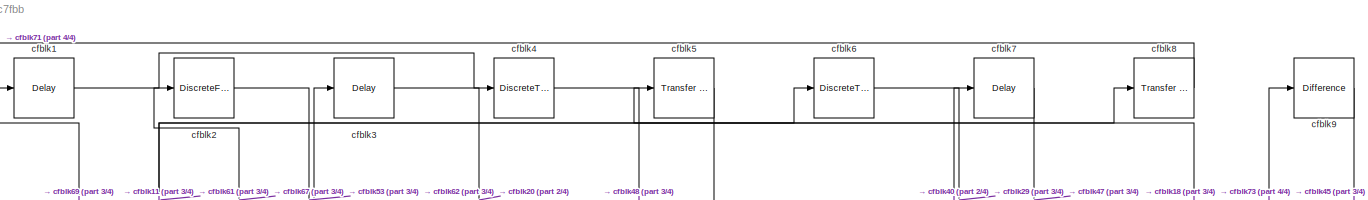
[diagram: root canvas - part 1/4, full width, top band]
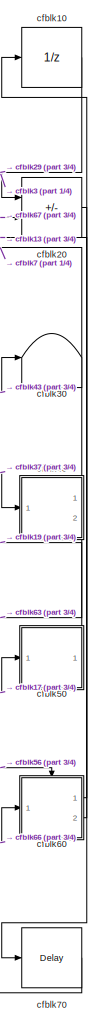
[diagram: root canvas - part 2/4, right side, full height]
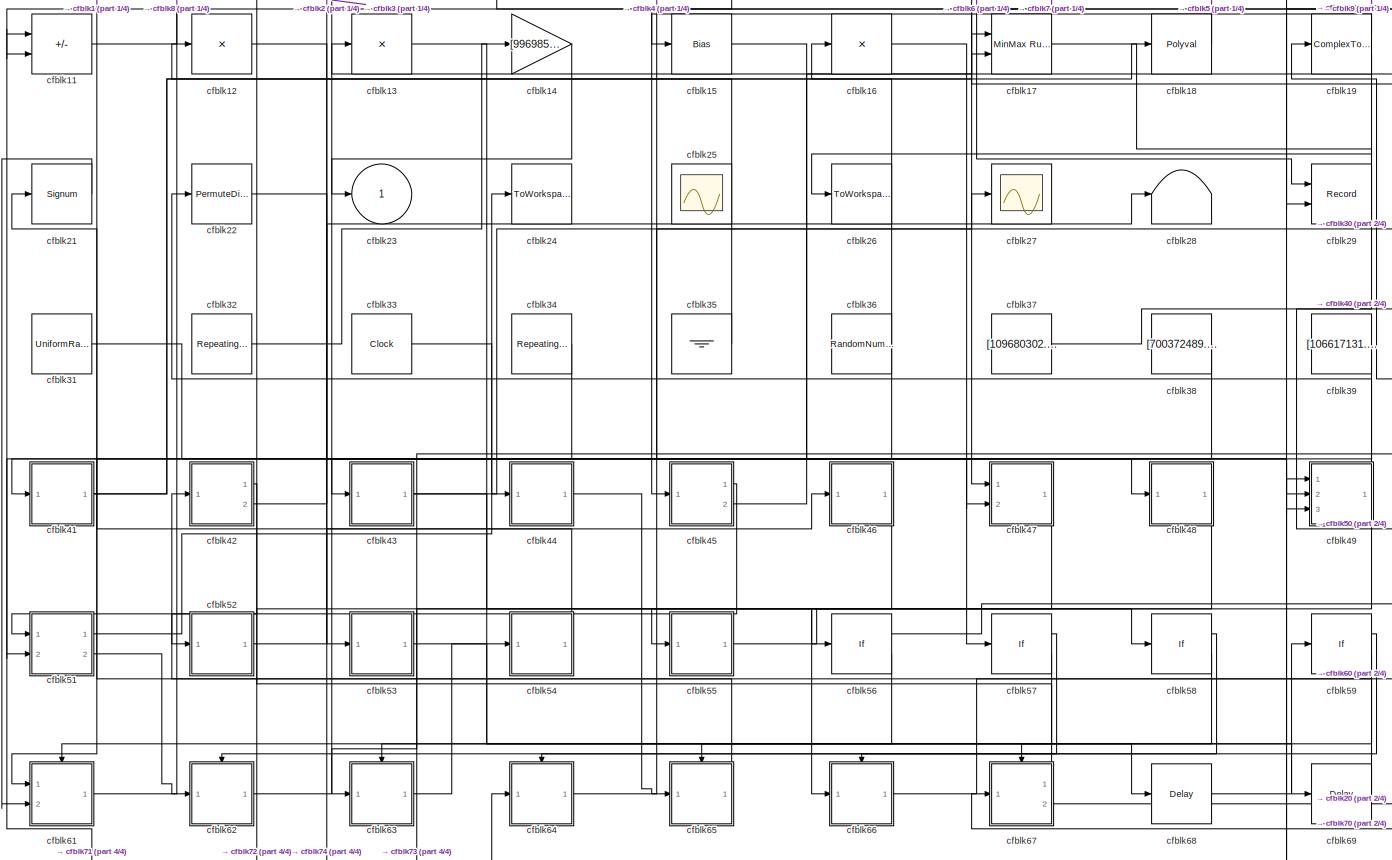
[diagram: root canvas - part 3/4, full width, middle band]
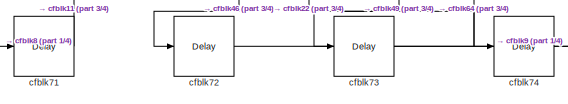
[diagram: root canvas - part 4/4, bottom left region]
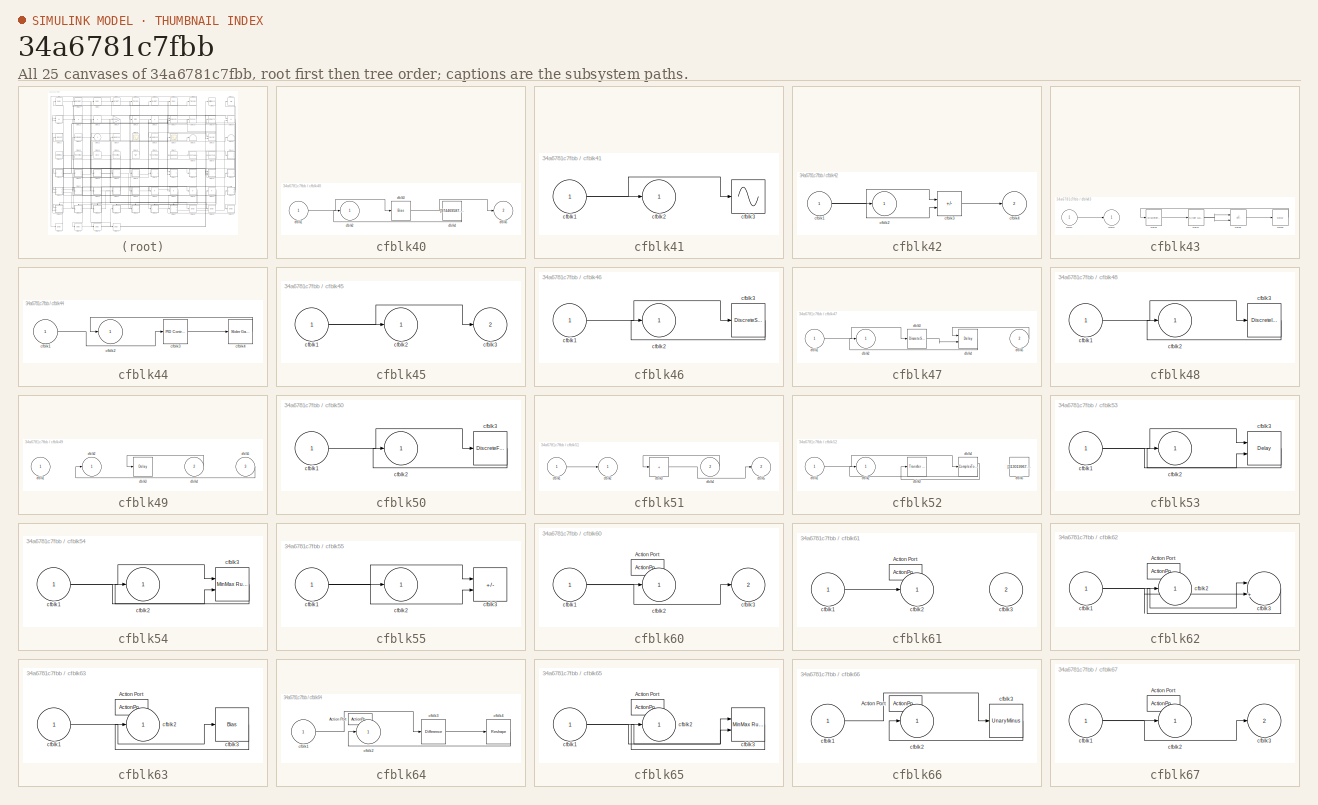
[diagram: thumbnail index - all 25 canvases of the model, root first then tree order]
MODEL slx_34a6781c7fbb
KIND model
CONFIG AbsTol = auto
CONFIG EnableMultiTasking = off
CONFIG FixedStep = auto
CONFIG MaxStep = auto
CONFIG MinStep = auto
CONFIG RelTol = 1e-3
CONFIG SampleTimeConstraint = Unconstrained
CONFIG SolverName = VariableStepAuto
CONFIG StartTime = 0.0
CONFIG StopTime = 10.0
BLOCK [Delay] cfblk1
  InputPortMap = u0
  Ports = [1, 1]
  SampleTime = 1
BLOCK [UnitDelay] cfblk10
  HasFrameUpgradeWarning = on
BLOCK [Sum] cfblk11
  IconShape = rectangular
  Inputs = --
  Ports = [2, 1]
BLOCK [Product] cfblk12
  Inputs = *
  Ports = [1, 1]
BLOCK [Product] cfblk13
  Inputs = *
  Ports = [1, 1]
BLOCK [Gain] cfblk14
  Gain = [996985049.679328]
BLOCK [Bias] cfblk15
  Bias = [567315216.311393]
  SaturateOnIntegerOverflow = off
BLOCK [Product] cfblk16
  Inputs = *
  Ports = [1, 1]
BLOCK [Reference] cfblk17  REF=simulink/Math
Operations/MinMax
Running
Resettable
  Ports = [2, 1]
  SourceBlock = simulink/Math\nOperations/MinMax\nRunning\nResettable
  SourceProductBaseCode = SL
  SourceType = MinMax Running Resettable
BLOCK [Polyval] cfblk18
  Coefs = [ +2.081618890e-019, -1.441693666e-014, +4.719686976e-010, -8.536869453e-006, +1.621573104e-001, -8.087801117e+001 ]
BLOCK [ComplexToRealImag] cfblk19
  Ports = [1, 2]
BLOCK [DiscreteFilter] cfblk2
  InputPortMap = u0
  Ports = [1, 1]
  SampleTime = 1
BLOCK [Sum] cfblk20
  IconShape = rectangular
  Inputs = -+
  Ports = [2, 1]
BLOCK [Signum] cfblk21
BLOCK [PermuteDimensions] cfblk22
BLOCK [Outport] cfblk23
BLOCK [ToWorkspace] cfblk24
  FixptAsFi = on
  MaxDataPoints = inf
  Ports = [1]
  SampleTime = -1
  SaveFormat = Timeseries
  VariableName = jlpfuwa
BLOCK [Scope] cfblk25
  Floating = on
  NumInputPorts = 1
  Ports = []
BLOCK [ToWorkspace] cfblk26
  FixptAsFi = on
  MaxDataPoints = inf
  Ports = [1]
  SampleTime = -1
  SaveFormat = Timeseries
  VariableName = gilvlaw
BLOCK [Scope] cfblk27
  Floating = off
  NumInputPorts = 1
  Ports = [1]
BLOCK [Terminator] cfblk28
BLOCK [Record] cfblk29
  CompatibilityTag = XY
  FileSettingsInternal = {"entries":[{"content":{"excelSettings":{"content":{},"type":"Streamout.ExcelSettings"}},"type":"Streamout.FileSettingStorage","uuid":"d0f24451-51db-411e-8607-9f3c8963e8ef"}],"packageUris":["http://schema.mathworks.com/mf0/streamout_blocks/R2020a"],"version":"1.0"}
  Layout = [1 1]
  Ports = [2]
  SignalsInternal = {"entries":[{"content":{"signals":[{"content":{"blockPath":["sampleModel256/cfblk29"],"channel":[],"dimensions":[1],"domain":"sampleModel256/cfblk29","lineColor":"#a2142f","plots":[1],"port":1,"sid":[""],"signalID":10552,"signalName":"cfblk6"},"type":"RecordBlkView.Signal","uuid":"703fe235-f85b-4682-9098-29d6559715a6"},{"content":{"blockPath":["sampleModel256/cfblk29"],"channel":[],"dimensions":[1...<+384ch>
  VisualizationBindings = {"xyplotplugin":{"info":[{"series":[{"bindingParametersList":[{"parameter":"X-Axis","signalID":10552,"signalName":"cfblk6"},{"parameter":"Y-Axis","signalID":10556,"signalName":"cfblk10"}],"seriesID":6340}],"subplotID":1}]}}
BLOCK [Delay] cfblk3
  InputPortMap = u0
  Ports = [1, 1]
  SampleTime = 1
BLOCK [Terminator] cfblk30
BLOCK [UniformRandomNumber] cfblk31
  Maximum = [9095802345.776228]
  Minimum = [-810443101.783880]
  SampleTime = 0.1
  Seed = [48066271.000000]
BLOCK [Reference] cfblk32  REF=simulink/Sources/Repeating
Sequence
Stair
  Ports = [0, 1]
  SourceBlock = simulink/Sources/Repeating\nSequence\nStair
  SourceProductBaseCode = SL
  SourceType = Repeating Sequence Stair
BLOCK [Clock] cfblk33
BLOCK [Reference] cfblk34  REF=simulink/Sources/Repeating
Sequence
Interpolated
  Ports = [0, 1]
  SourceBlock = simulink/Sources/Repeating\nSequence\nInterpolated
  SourceProductBaseCode = SL
  SourceType = Repeating Sequence Interpolated
BLOCK [Ground] cfblk35
BLOCK [RandomNumber] cfblk36
  Mean = [84976.409832]
  SampleTime = 0.1
  Seed = [840926858.000000]
  Variance = [71029.152381]
BLOCK [Constant] cfblk37
  SampleTime = 1
  Value = [109680302.552300]
BLOCK [Constant] cfblk38
  SampleTime = 1
  Value = [700372489.505637]
BLOCK [Constant] cfblk39
  SampleTime = 1
  Value = [106617131.002452]
BLOCK [DiscreteTransferFcn] cfblk4
  InputPortMap = u0
  Ports = [1, 1]
  SampleTime = 1
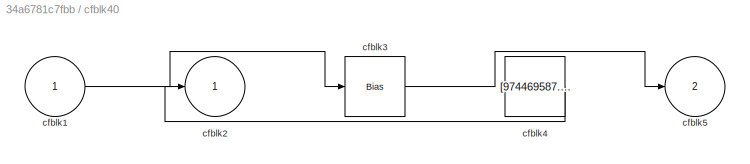
BLOCK [SubSystem] cfblk40
  Ports = [1, 2]
  RequestExecContextInheritance = off
BLOCK [Inport] cfblk40/cfblk1
BLOCK [Outport] cfblk40/cfblk2
BLOCK [Bias] cfblk40/cfblk3
  Bias = [385920707.932602]
  SaturateOnIntegerOverflow = off
BLOCK [Constant] cfblk40/cfblk4
  SampleTime = 1
  Value = [974469587.391163]
BLOCK [Outport] cfblk40/cfblk5
  Port = 2
BLOCK [SubSystem] cfblk41
  Ports = [1, 1]
  RequestExecContextInheritance = off
BLOCK [Inport] cfblk41/cfblk1
BLOCK [Outport] cfblk41/cfblk2
BLOCK [Sin] cfblk41/cfblk3
  Ports = [1, 1]
  SampleTime = 0
  TimeSource = Use external signal
BLOCK [SubSystem] cfblk42
  Ports = [1, 2]
  RequestExecContextInheritance = off
BLOCK [Inport] cfblk42/cfblk1
BLOCK [Outport] cfblk42/cfblk2
BLOCK [Sum] cfblk42/cfblk3
  IconShape = rectangular
  Inputs = +-
  Ports = [2, 1]
BLOCK [Outport] cfblk42/cfblk4
  Port = 2
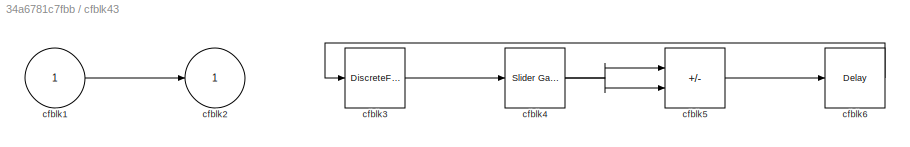
BLOCK [SubSystem] cfblk43
  Ports = [1, 1]
  RequestExecContextInheritance = off
BLOCK [Inport] cfblk43/cfblk1
BLOCK [Outport] cfblk43/cfblk2
BLOCK [DiscreteFir] cfblk43/cfblk3
  InputPortMap = u0
  OutputPortMap = o0
  Ports = [1, 1]
  SampleTime = 1
BLOCK [Reference] cfblk43/cfblk4  REF=simulink/Math
Operations/Slider
Gain
  Ports = [1, 1]
  SourceBlock = simulink/Math\nOperations/Slider\nGain
  SourceProductBaseCode = SL
  SourceType = Slider Gain
BLOCK [Sum] cfblk43/cfblk5
  IconShape = rectangular
  Inputs = --
  Ports = [2, 1]
BLOCK [Delay] cfblk43/cfblk6
  InputPortMap = u0
  Ports = [1, 1]
  SampleTime = 1
BLOCK [SubSystem] cfblk44
  Ports = [1, 1]
  RequestExecContextInheritance = off
BLOCK [Inport] cfblk44/cfblk1
BLOCK [Outport] cfblk44/cfblk2
BLOCK [Reference] cfblk44/cfblk3  REF=slpidlib/PID Controller
  Ports = [1, 1]
  SourceBlock = slpidlib/PID Controller
  SourceProductBaseCode = SL
  SourceType = PID 1dof
BLOCK [Reference] cfblk44/cfblk4  REF=simulink/Math
Operations/Slider
Gain
  Ports = [1, 1]
  SourceBlock = simulink/Math\nOperations/Slider\nGain
  SourceProductBaseCode = SL
  SourceType = Slider Gain
BLOCK [SubSystem] cfblk45
  Ports = [1, 2]
  RequestExecContextInheritance = off
BLOCK [Inport] cfblk45/cfblk1
BLOCK [Outport] cfblk45/cfblk2
BLOCK [Outport] cfblk45/cfblk3
  Port = 2
BLOCK [SubSystem] cfblk46
  Ports = [1, 1]
  RequestExecContextInheritance = off
BLOCK [Inport] cfblk46/cfblk1
BLOCK [Outport] cfblk46/cfblk2
BLOCK [DiscreteStateSpace] cfblk46/cfblk3
BLOCK [SubSystem] cfblk47
  Ports = [2, 1]
  RequestExecContextInheritance = off
BLOCK [Inport] cfblk47/cfblk1
BLOCK [Outport] cfblk47/cfblk2
BLOCK [DiscreteStateSpace] cfblk47/cfblk3
BLOCK [Delay] cfblk47/cfblk4
  DelayLengthSource = Input port
  InputPortMap = u0,p1
  Ports = [2, 1]
  SampleTime = 1
BLOCK [Inport] cfblk47/cfblk5
  Port = 2
BLOCK [SubSystem] cfblk48
  Ports = [1, 1]
  RequestExecContextInheritance = off
BLOCK [Inport] cfblk48/cfblk1
BLOCK [Outport] cfblk48/cfblk2
BLOCK [DiscreteIntegrator] cfblk48/cfblk3
  ICPrevOutput = DiscIntNeverNeededParam
  ICPrevScaledInput = DiscIntNeverNeededParam
  InitialConditionSetting = Auto
  Ports = [1, 1]
BLOCK [SubSystem] cfblk49
  Ports = [3, 1]
  RequestExecContextInheritance = off
BLOCK [Inport] cfblk49/cfblk1
BLOCK [Outport] cfblk49/cfblk2
BLOCK [Delay] cfblk49/cfblk3
  InputPortMap = u0
  Ports = [1, 1]
  SampleTime = 1
BLOCK [Inport] cfblk49/cfblk4
  Port = 2
BLOCK [Inport] cfblk49/cfblk5
  Port = 3
BLOCK [Reference] cfblk5  REF=simulink/Discrete/Transfer Fcn
First Order
  Ports = [1, 1]
  SourceBlock = simulink/Discrete/Transfer Fcn\nFirst Order
  SourceProductBaseCode = SL
  SourceType = First Order Transfer Fcn
BLOCK [SubSystem] cfblk50
  Ports = [1, 1]
  RequestExecContextInheritance = off
BLOCK [Inport] cfblk50/cfblk1
BLOCK [Outport] cfblk50/cfblk2
BLOCK [DiscreteFir] cfblk50/cfblk3
  InputPortMap = u0
  OutputPortMap = o0
  Ports = [1, 1]
  SampleTime = 1
BLOCK [SubSystem] cfblk51
  Ports = [2, 2]
  RequestExecContextInheritance = off
BLOCK [Inport] cfblk51/cfblk1
BLOCK [Outport] cfblk51/cfblk2
BLOCK [Sum] cfblk51/cfblk3
  IconShape = rectangular
  Inputs = +
  Ports = [1, 1]
BLOCK [Inport] cfblk51/cfblk4
  Port = 2
BLOCK [Outport] cfblk51/cfblk5
  Port = 2
BLOCK [SubSystem] cfblk52
  Ports = [1, 1]
  RequestExecContextInheritance = off
BLOCK [Inport] cfblk52/cfblk1
BLOCK [Outport] cfblk52/cfblk2
BLOCK [Reference] cfblk52/cfblk3  REF=simulink/Discrete/Transfer Fcn
Real Zero
  Ports = [1, 1]
  SourceBlock = simulink/Discrete/Transfer Fcn\nReal Zero
  SourceProductBaseCode = SL
  SourceType = Transfer Fcn Real Zero
BLOCK [ComplexToMagnitudeAngle] cfblk52/cfblk4
  Ports = [1, 2]
BLOCK [Constant] cfblk52/cfblk5
  SampleTime = 1
  Value = [313019967.288849]
BLOCK [SubSystem] cfblk53
  Ports = [1, 1]
  RequestExecContextInheritance = off
BLOCK [Inport] cfblk53/cfblk1
BLOCK [Outport] cfblk53/cfblk2
BLOCK [Delay] cfblk53/cfblk3
  InputPortMap = u0,e6
  Ports = [2, 1]
  SampleTime = 1
  ShowEnablePort = on
BLOCK [SubSystem] cfblk54
  Ports = [1, 1]
  RequestExecContextInheritance = off
BLOCK [Inport] cfblk54/cfblk1
BLOCK [Outport] cfblk54/cfblk2
BLOCK [Reference] cfblk54/cfblk3  REF=simulink/Math
Operations/MinMax
Running
Resettable
  Ports = [2, 1]
  SourceBlock = simulink/Math\nOperations/MinMax\nRunning\nResettable
  SourceProductBaseCode = SL
  SourceType = MinMax Running Resettable
BLOCK [SubSystem] cfblk55
  Ports = [1, 1]
  RequestExecContextInheritance = off
BLOCK [Inport] cfblk55/cfblk1
BLOCK [Outport] cfblk55/cfblk2
BLOCK [Sum] cfblk55/cfblk3
  IconShape = rectangular
  Inputs = +-
  Ports = [2, 1]
BLOCK [If] cfblk56
  IfExpression = u1 >= 0
  Ports = [1, 2]
  SampleTime = 1
BLOCK [If] cfblk57
  IfExpression = u1 >= 0
  Ports = [1, 2]
  SampleTime = 1
BLOCK [If] cfblk58
  IfExpression = u1 >= 0
  Ports = [1, 2]
  SampleTime = 1
BLOCK [If] cfblk59
  IfExpression = u1 >= 0
  Ports = [1, 2]
  SampleTime = 1
BLOCK [DiscreteTransferFcn] cfblk6
  InputPortMap = u0
  Ports = [1, 1]
  SampleTime = 1
BLOCK [SubSystem] cfblk60
  Ports = [1, 2, 0, 0, 0, 0, 0, 1]
  RequestExecContextInheritance = off
  TreatAsAtomicUnit = on
BLOCK [ActionPort] cfblk60/Action Port
  ActionPortLabel = if(u1 >= 0)
BLOCK [Inport] cfblk60/cfblk1
BLOCK [Outport] cfblk60/cfblk2
BLOCK [Outport] cfblk60/cfblk3
  Port = 2
BLOCK [SubSystem] cfblk61
  Ports = [2, 1, 0, 0, 0, 0, 0, 1]
  RequestExecContextInheritance = off
  TreatAsAtomicUnit = on
BLOCK [ActionPort] cfblk61/Action Port
  ActionPortLabel = else
BLOCK [Inport] cfblk61/cfblk1
BLOCK [Outport] cfblk61/cfblk2
BLOCK [Inport] cfblk61/cfblk3
  Port = 2
BLOCK [SubSystem] cfblk62
  Ports = [1, 1, 0, 0, 0, 0, 0, 1]
  RequestExecContextInheritance = off
  TreatAsAtomicUnit = on
BLOCK [ActionPort] cfblk62/Action Port
  ActionPortLabel = if(u1 >= 0)
BLOCK [Inport] cfblk62/cfblk1
BLOCK [Outport] cfblk62/cfblk2
BLOCK [Sum] cfblk62/cfblk3
  Inputs = |++
  Ports = [2, 1]
BLOCK [SubSystem] cfblk63
  Ports = [1, 1, 0, 0, 0, 0, 0, 1]
  RequestExecContextInheritance = off
  TreatAsAtomicUnit = on
BLOCK [ActionPort] cfblk63/Action Port
  ActionPortLabel = else
BLOCK [Inport] cfblk63/cfblk1
BLOCK [Outport] cfblk63/cfblk2
BLOCK [Bias] cfblk63/cfblk3
  Bias = [432812070.396524]
  SaturateOnIntegerOverflow = off
BLOCK [SubSystem] cfblk64
  Ports = [1, 1, 0, 0, 0, 0, 0, 1]
  RequestExecContextInheritance = off
  TreatAsAtomicUnit = on
BLOCK [ActionPort] cfblk64/Action Port
  ActionPortLabel = if(u1 >= 0)
BLOCK [Inport] cfblk64/cfblk1
BLOCK [Outport] cfblk64/cfblk2
BLOCK [Reference] cfblk64/cfblk3  REF=simulink/Discrete/Difference
  Ports = [1, 1]
  SourceBlock = simulink/Discrete/Difference
  SourceProductBaseCode = SL
  SourceType = Difference
BLOCK [Reshape] cfblk64/cfblk4
  Ports = [1, 1]
BLOCK [SubSystem] cfblk65
  Ports = [1, 1, 0, 0, 0, 0, 0, 1]
  RequestExecContextInheritance = off
  TreatAsAtomicUnit = on
BLOCK [ActionPort] cfblk65/Action Port
  ActionPortLabel = else
BLOCK [Inport] cfblk65/cfblk1
BLOCK [Outport] cfblk65/cfblk2
BLOCK [Reference] cfblk65/cfblk3  REF=simulink/Math
Operations/MinMax
Running
Resettable
  Ports = [2, 1]
  SourceBlock = simulink/Math\nOperations/MinMax\nRunning\nResettable
  SourceProductBaseCode = SL
  SourceType = MinMax Running Resettable
BLOCK [SubSystem] cfblk66
  Ports = [1, 1, 0, 0, 0, 0, 0, 1]
  RequestExecContextInheritance = off
  TreatAsAtomicUnit = on
BLOCK [ActionPort] cfblk66/Action Port
  ActionPortLabel = if(u1 >= 0)
BLOCK [Inport] cfblk66/cfblk1
BLOCK [Outport] cfblk66/cfblk2
BLOCK [UnaryMinus] cfblk66/cfblk3
BLOCK [SubSystem] cfblk67
  Ports = [1, 2, 0, 0, 0, 0, 0, 1]
  RequestExecContextInheritance = off
  TreatAsAtomicUnit = on
BLOCK [ActionPort] cfblk67/Action Port
  ActionPortLabel = else
BLOCK [Inport] cfblk67/cfblk1
BLOCK [Outport] cfblk67/cfblk2
BLOCK [Outport] cfblk67/cfblk3
  Port = 2
BLOCK [Delay] cfblk68
  InputPortMap = u0
  Ports = [1, 1]
  SampleTime = 1
BLOCK [Delay] cfblk69
  InputPortMap = u0
  Ports = [1, 1]
  SampleTime = 1
BLOCK [Delay] cfblk7
  InputPortMap = u0
  Ports = [1, 1]
  SampleTime = 1
BLOCK [Delay] cfblk70
  InputPortMap = u0
  Ports = [1, 1]
  SampleTime = 1
BLOCK [Delay] cfblk71
  InputPortMap = u0
  Ports = [1, 1]
  SampleTime = 1
BLOCK [Delay] cfblk72
  InputPortMap = u0
  Ports = [1, 1]
  SampleTime = 1
BLOCK [Delay] cfblk73
  InputPortMap = u0
  Ports = [1, 1]
  SampleTime = 1
BLOCK [Delay] cfblk74
  InputPortMap = u0
  Ports = [1, 1]
  SampleTime = 1
BLOCK [Reference] cfblk8  REF=simulink/Discrete/Transfer Fcn
First Order
  Ports = [1, 1]
  SourceBlock = simulink/Discrete/Transfer Fcn\nFirst Order
  SourceProductBaseCode = SL
  SourceType = First Order Transfer Fcn
BLOCK [Reference] cfblk9  REF=simulink/Discrete/Difference
  Ports = [1, 1]
  SourceBlock = simulink/Discrete/Difference
  SourceProductBaseCode = SL
  SourceType = Difference
LINE cfblk10:1 -> cfblk29:2
LINE cfblk11:1 -> cfblk8:1
LINE cfblk12:1 -> cfblk49:3
LINE cfblk13:1 -> cfblk68:1
LINE cfblk14:1 -> cfblk23:1
LINE cfblk15:1 -> cfblk49:2
LINE cfblk16:1 -> cfblk57:1
LINE cfblk17:1 -> cfblk50:1
LINE cfblk18:1 -> cfblk5:1
LINE cfblk19:1 -> cfblk15:1
LINE cfblk19:2 -> cfblk26:1
LINE cfblk1:1 -> cfblk4:1
LINE cfblk20:1 -> cfblk70:1
LINE cfblk21:1 -> cfblk61:2
LINE cfblk22:1 -> cfblk74:1
LINE cfblk2:1 -> cfblk53:1
LINE cfblk31:1 -> cfblk47:2
LINE cfblk32:1 -> cfblk14:1
LINE cfblk33:1 -> cfblk44:1
LINE cfblk34:1 -> cfblk61:1
LINE cfblk35:1 -> cfblk12:1
NET cfblk36:1 -> cfblk16:1, cfblk51:2
LINE cfblk37:1 -> cfblk40:1
LINE cfblk38:1 -> cfblk41:1
LINE cfblk39:1 -> cfblk43:1
LINE cfblk3:1 -> cfblk20:1
LINE cfblk40/cfblk1:1 -> cfblk40/cfblk3:1
LINE cfblk40/cfblk3:1 -> cfblk40/cfblk5:1
LINE cfblk40/cfblk4:1 -> cfblk40/cfblk2:1
LINE cfblk40:1 -> cfblk7:1
LINE cfblk40:2 -> cfblk63:1
NET cfblk41/cfblk1:1 -> cfblk41/cfblk2:1, cfblk41/cfblk3:1
NET cfblk41:1 -> cfblk17:2, cfblk18:1
NET cfblk42/cfblk1:1 -> cfblk42/cfblk2:1, cfblk42/cfblk3:1, cfblk42/cfblk3:2
LINE cfblk42/cfblk3:1 -> cfblk42/cfblk4:1
LINE cfblk42:1 -> cfblk52:1
LINE cfblk42:2 -> cfblk28:1
LINE cfblk43/cfblk1:1 -> cfblk43/cfblk2:1
LINE cfblk43/cfblk3:1 -> cfblk43/cfblk4:1
NET cfblk43/cfblk4:1 -> cfblk43/cfblk5:1, cfblk43/cfblk5:2
LINE cfblk43/cfblk5:1 -> cfblk43/cfblk6:1
LINE cfblk43/cfblk6:1 -> cfblk43/cfblk3:1
NET cfblk43:1 -> cfblk30:1, cfblk56:1
LINE cfblk44/cfblk1:1 -> cfblk44/cfblk3:1
LINE cfblk44/cfblk3:1 -> cfblk44/cfblk4:1
LINE cfblk44/cfblk4:1 -> cfblk44/cfblk2:1
LINE cfblk44:1 -> cfblk65:1
NET cfblk45/cfblk1:1 -> cfblk45/cfblk2:1, cfblk45/cfblk3:1
LINE cfblk45:1 -> cfblk51:1
LINE cfblk45:2 -> cfblk17:1
LINE cfblk46/cfblk1:1 -> cfblk46/cfblk3:1
LINE cfblk46/cfblk3:1 -> cfblk46/cfblk2:1
LINE cfblk46:1 -> cfblk72:1
LINE cfblk47/cfblk1:1 -> cfblk47/cfblk3:1
LINE cfblk47/cfblk3:1 -> cfblk47/cfblk4:2
LINE cfblk47/cfblk4:1 -> cfblk47/cfblk2:1
LINE cfblk47/cfblk5:1 -> cfblk47/cfblk4:1
LINE cfblk47:1 -> cfblk55:1
LINE cfblk48/cfblk1:1 -> cfblk48/cfblk3:1
LINE cfblk48/cfblk3:1 -> cfblk48/cfblk2:1
LINE cfblk48:1 -> cfblk66:1
LINE cfblk49/cfblk4:1 -> cfblk49/cfblk3:1
LINE cfblk49/cfblk5:1 -> cfblk49/cfblk2:1
NET cfblk49:1 -> cfblk22:1, cfblk73:1
LINE cfblk4:1 -> cfblk48:1
LINE cfblk50/cfblk1:1 -> cfblk50/cfblk3:1
LINE cfblk50/cfblk3:1 -> cfblk50/cfblk2:1
LINE cfblk50:1 -> cfblk19:1
LINE cfblk51/cfblk1:1 -> cfblk51/cfblk2:1
LINE cfblk51/cfblk3:1 -> cfblk51/cfblk5:1
LINE cfblk51/cfblk4:1 -> cfblk51/cfblk3:1
LINE cfblk51:1 -> cfblk24:1
LINE cfblk51:2 -> cfblk62:1
LINE cfblk52/cfblk1:1 -> cfblk52/cfblk4:1
LINE cfblk52/cfblk4:1 -> cfblk52/cfblk3:1
LINE cfblk52/cfblk4:2 -> cfblk52/cfblk2:1
LINE cfblk52:1 -> cfblk46:1
NET cfblk53/cfblk1:1 -> cfblk53/cfblk3:1, cfblk53/cfblk3:2
LINE cfblk53/cfblk3:1 -> cfblk53/cfblk2:1
LINE cfblk53:1 -> cfblk69:1
NET cfblk54/cfblk1:1 -> cfblk54/cfblk3:1, cfblk54/cfblk3:2
LINE cfblk54/cfblk3:1 -> cfblk54/cfblk2:1
LINE cfblk54:1 -> cfblk21:1
NET cfblk55/cfblk1:1 -> cfblk55/cfblk2:1, cfblk55/cfblk3:1, cfblk55/cfblk3:2
LINE cfblk55:1 -> cfblk58:1
LINE cfblk56:1 -> cfblk60:ifaction
LINE cfblk56:2 -> cfblk61:ifaction
LINE cfblk57:1 -> cfblk62:ifaction
LINE cfblk57:2 -> cfblk63:ifaction
LINE cfblk58:1 -> cfblk64:ifaction
LINE cfblk58:2 -> cfblk65:ifaction
LINE cfblk59:1 -> cfblk66:ifaction
LINE cfblk59:2 -> cfblk67:ifaction
LINE cfblk5:1 -> cfblk11:2
NET cfblk60/cfblk1:1 -> cfblk60/cfblk2:1, cfblk60/cfblk3:1
LINE cfblk60:1 -> cfblk10:1
LINE cfblk60:2 -> cfblk13:1
LINE cfblk61/cfblk1:1 -> cfblk61/cfblk2:1
LINE cfblk61:1 -> cfblk6:1
NET cfblk62/cfblk1:1 -> cfblk62/cfblk3:1, cfblk62/cfblk3:2
LINE cfblk62/cfblk3:1 -> cfblk62/cfblk2:1
LINE cfblk62:1 -> cfblk3:1
LINE cfblk63/cfblk1:1 -> cfblk63/cfblk3:1
LINE cfblk63/cfblk3:1 -> cfblk63/cfblk2:1
LINE cfblk63:1 -> cfblk54:1
LINE cfblk64/cfblk1:1 -> cfblk64/cfblk3:1
LINE cfblk64/cfblk3:1 -> cfblk64/cfblk4:1
LINE cfblk64/cfblk4:1 -> cfblk64/cfblk2:1
LINE cfblk64:1 -> cfblk27:1
NET cfblk65/cfblk1:1 -> cfblk65/cfblk3:1, cfblk65/cfblk3:2
LINE cfblk65/cfblk3:1 -> cfblk65/cfblk2:1
LINE cfblk65:1 -> cfblk42:1
LINE cfblk66/cfblk1:1 -> cfblk66/cfblk3:1
LINE cfblk66/cfblk3:1 -> cfblk66/cfblk2:1
LINE cfblk66:1 -> cfblk60:1
NET cfblk67/cfblk1:1 -> cfblk67/cfblk2:1, cfblk67/cfblk3:1
LINE cfblk67:1 -> cfblk2:1
LINE cfblk67:2 -> cfblk20:2
LINE cfblk68:1 -> cfblk59:1
LINE cfblk69:1 -> cfblk1:1
LINE cfblk6:1 -> cfblk29:1
LINE cfblk70:1 -> cfblk67:1
LINE cfblk71:1 -> cfblk11:1
LINE cfblk72:1 -> cfblk64:1
LINE cfblk73:1 -> cfblk9:1
LINE cfblk74:1 -> cfblk49:1
LINE cfblk7:1 -> cfblk47:1
LINE cfblk8:1 -> cfblk71:1
LINE cfblk9:1 -> cfblk45:1
note: NET lines group one-source signal fan-out (src -> all destinations, sorted); 1:1 wires keep LINE
